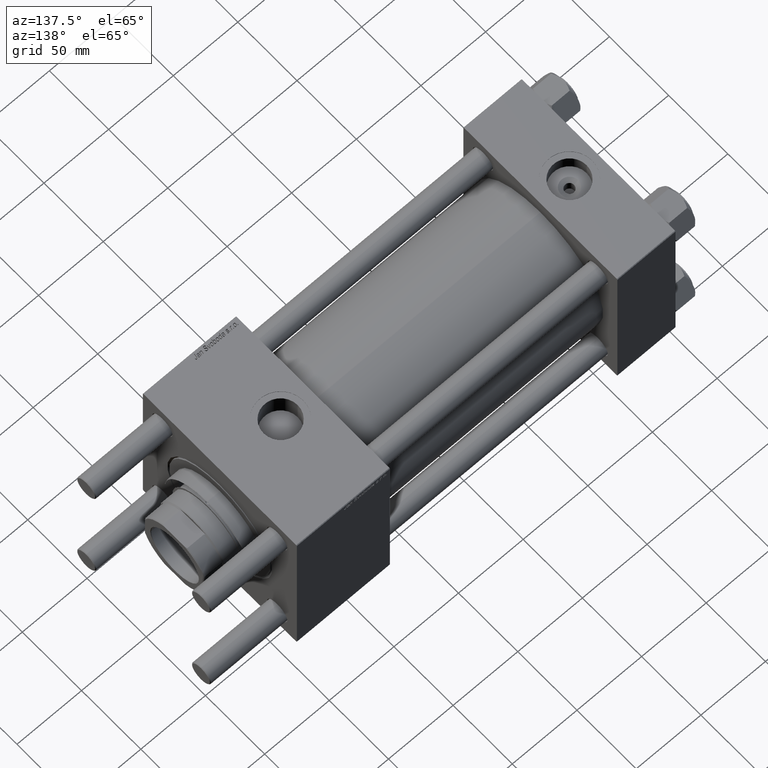
[diagram: clean part render]
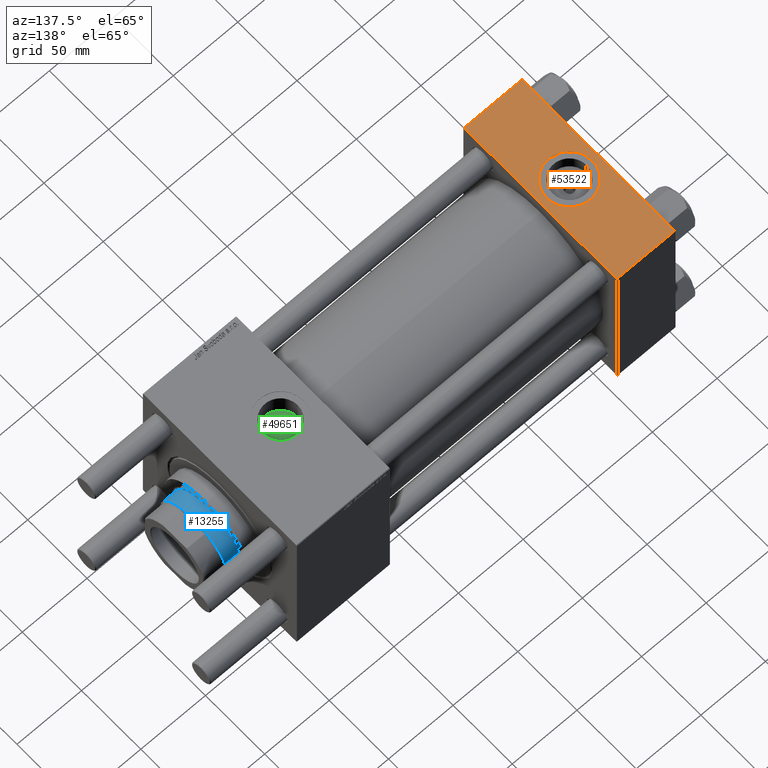
[diagram: same view with three faces highlighted in distinct colors, each labeled with its STEP entity id]
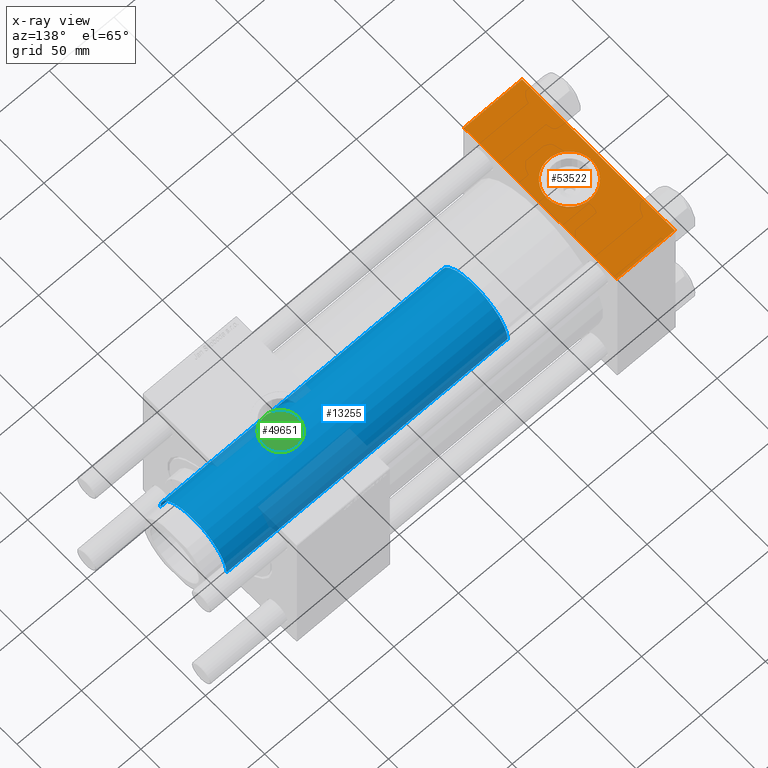
[diagram: x-ray of the same camera — body ghosted, the three highlighted faces saturated]
A machine part, auxiliary view with three faces highlighted in distinct colors.
The next image is the same camera in x-ray (body ghosted, the three faces saturated) — at least one of them is partly hidden behind the body in this view.
Their STEP definitions:

[orange] entity #53522 — the highlighted planar face has unit normal (0, 0, -1).
#555 = LINE ( 'NONE', #58596, #15909 ) ;
#647 = AXIS2_PLACEMENT_3D ( 'NONE', #57037, #20501, #11249 ) ;
#1080 = VERTEX_POINT ( 'NONE', #30788 ) ;
#2530 = VERTEX_POINT ( 'NONE', #51110 ) ;
#3120 = CIRCLE ( 'NONE', #9821, 17.50000000000000000 ) ;
#4623 = LINE ( 'NONE', #10276, #33643 ) ;
#5213 = CARTESIAN_POINT ( 'NONE',  ( 0.000000000000000000, -64.49999999999997158, 65.00000000000000000 ) ) ;
#5769 = DIRECTION ( 'NONE',  ( 0.000000000000000000, -1.000000000000000000, -1.067522139062650425E-16 ) ) ;
#7066 = FACE_BOUND ( 'NONE', #41758, .T. ) ;
#7391 = VECTOR ( 'NONE', #5769, 1000.000000000000000 ) ;
#9681 = VERTEX_POINT ( 'NONE', #5213 ) ;
#9821 = AXIS2_PLACEMENT_3D ( 'NONE', #31433, #41022, #50882 ) ;
#9910 = EDGE_CURVE ( 'NONE', #51829, #1080, #3120, .T. ) ;
#10276 = CARTESIAN_POINT ( 'NONE',  ( 0.000000000000000000, 65.00000000000000000, 65.00000000000001421 ) ) ;
#10398 = EDGE_CURVE ( 'NONE', #12628, #9681, #4623, .T. ) ;
#11249 = DIRECTION ( 'NONE',  ( 0.000000000000000000, 1.000000000000000000, 1.067522139062650548E-16 ) ) ;
#11828 = CARTESIAN_POINT ( 'NONE',  ( 0.000000000000000000, 64.49999999999997158, 65.00000000000001421 ) ) ;
#12628 = VERTEX_POINT ( 'NONE', #11828 ) ;
#13258 = PLANE ( 'NONE',  #647 ) ;
#13848 = LINE ( 'NONE', #19211, #7391 ) ;
#14700 = DIRECTION ( 'NONE',  ( 1.000000000000000000, 0.000000000000000000, 0.000000000000000000 ) ) ;
#15909 = VECTOR ( 'NONE', #28030, 1000.000000000000000 ) ;
#16930 = ORIENTED_EDGE ( 'NONE', *, *, #54334, .T. ) ;
#18832 = VERTEX_POINT ( 'NONE', #54820 ) ;
#19211 = CARTESIAN_POINT ( 'NONE',  ( 45.00000000000000000, 65.00000000000000000, 65.00000000000001421 ) ) ;
#20501 = DIRECTION ( 'NONE',  ( 0.000000000000000000, 1.067522139062650548E-16, -1.000000000000000000 ) ) ;
#25062 = DIRECTION ( 'NONE',  ( 1.000000000000000000, 0.000000000000000000, 0.000000000000000000 ) ) ;
#25871 = ORIENTED_EDGE ( 'NONE', *, *, #37177, .F. ) ;
#25963 = ORIENTED_EDGE ( 'NONE', *, *, #10398, .T. ) ;
#26389 = FACE_OUTER_BOUND ( 'NONE', #47111, .T. ) ;
#27917 = CARTESIAN_POINT ( 'NONE',  ( 40.00000000000000000, -8.673617379884035472E-15, 65.00000000000000000 ) ) ;
#28030 = DIRECTION ( 'NONE',  ( -1.000000000000000000, 0.000000000000000000, 0.000000000000000000 ) ) ;
#30788 = CARTESIAN_POINT ( 'NONE',  ( 4.999999999999997335, -6.530485481376167224E-15, 65.00000000000000000 ) ) ;
#31026 = CARTESIAN_POINT ( 'NONE',  ( 45.00000000000000000, -64.49999999999997158, 65.00000000000000000 ) ) ;
#31433 = CARTESIAN_POINT ( 'NONE',  ( 22.50000000000000000, -8.673617379884035472E-15, 65.00000000000000000 ) ) ;
#32636 = CARTESIAN_POINT ( 'NONE',  ( 22.50000000000000000, -8.673617379884035472E-15, 65.00000000000000000 ) ) ;
#33643 = VECTOR ( 'NONE', #55772, 1000.000000000000000 ) ;
#35398 = EDGE_CURVE ( 'NONE', #1080, #51829, #39833, .T. ) ;
#37177 = EDGE_CURVE ( 'NONE', #2530, #18832, #13848, .T. ) ;
#39833 = CIRCLE ( 'NONE', #47469, 17.50000000000000000 ) ;
#40222 = ORIENTED_EDGE ( 'NONE', *, *, #46746, .T. ) ;
#41022 = DIRECTION ( 'NONE',  ( 0.000000000000000000, 0.000000000000000000, 1.000000000000000000 ) ) ;
#41491 = ORIENTED_EDGE ( 'NONE', *, *, #35398, .F. ) ;
#41758 = EDGE_LOOP ( 'NONE', ( #58900, #41491 ) ) ;
#45814 = VECTOR ( 'NONE', #25062, 1000.000000000000000 ) ;
#46746 = EDGE_CURVE ( 'NONE', #9681, #18832, #58286, .T. ) ;
#47111 = EDGE_LOOP ( 'NONE', ( #25963, #40222, #25871, #16930 ) ) ;
#47469 = AXIS2_PLACEMENT_3D ( 'NONE', #32636, #55704, #14700 ) ;
#50882 = DIRECTION ( 'NONE',  ( 1.000000000000000000, 0.000000000000000000, 0.000000000000000000 ) ) ;
#51110 = CARTESIAN_POINT ( 'NONE',  ( 45.00000000000000000, 64.49999999999997158, 65.00000000000001421 ) ) ;
#51829 = VERTEX_POINT ( 'NONE', #27917 ) ;
#53522 = ADVANCED_FACE ( 'NONE', ( #7066, #26389 ), #13258, .F. ) ;
#54334 = EDGE_CURVE ( 'NONE', #2530, #12628, #555, .T. ) ;
#54820 = CARTESIAN_POINT ( 'NONE',  ( 45.00000000000000000, -64.49999999999997158, 65.00000000000000000 ) ) ;
#55704 = DIRECTION ( 'NONE',  ( 0.000000000000000000, 0.000000000000000000, 1.000000000000000000 ) ) ;
#55772 = DIRECTION ( 'NONE',  ( 0.000000000000000000, -1.000000000000000000, -1.067522139062650425E-16 ) ) ;
#57037 = CARTESIAN_POINT ( 'NONE',  ( 45.00000000000000000, 65.00000000000000000, 65.00000000000001421 ) ) ;
#58286 = LINE ( 'NONE', #31026, #45814 ) ;
#58596 = CARTESIAN_POINT ( 'NONE',  ( 0.000000000000000000, 64.49999999999997158, 65.00000000000001421 ) ) ;
#58900 = ORIENTED_EDGE ( 'NONE', *, *, #9910, .F. ) ;

[blue] entity #13255 — the highlighted cylindrical surface (partial cylindrical patch) has radius 28 mm, axis along (-1, 0, 0).
#443 = AXIS2_PLACEMENT_3D ( 'NONE', #51363, #37310, #1130 ) ;
#1130 = DIRECTION ( 'NONE',  ( -1.000000000000000000, 0.000000000000000000, 0.000000000000000000 ) ) ;
#1417 = FACE_OUTER_BOUND ( 'NONE', #20282, .T. ) ;
#3581 = DIRECTION ( 'NONE',  ( 0.000000000000000000, 0.000000000000000000, -1.000000000000000000 ) ) ;
#5324 = CYLINDRICAL_SURFACE ( 'NONE', #443, 28.00000000000000000 ) ;
#13255 = ADVANCED_FACE ( 'NONE', ( #1417 ), #5324, .T. ) ;
#13432 = DIRECTION ( 'NONE',  ( 1.000000000000000000, 0.000000000000000000, 0.000000000000000000 ) ) ;
#14250 = VERTEX_POINT ( 'NONE', #58518 ) ;
#17197 = ORIENTED_EDGE ( 'NONE', *, *, #49393, .T. ) ;
#20207 = VERTEX_POINT ( 'NONE', #33010 ) ;
#20282 = EDGE_LOOP ( 'NONE', ( #55161, #25461, #34854, #17197 ) ) ;
#21440 = VECTOR ( 'NONE', #46104, 1000.000000000000000 ) ;
#21624 = DIRECTION ( 'NONE',  ( -0.000000000000000000, -0.000000000000000000, -1.000000000000000000 ) ) ;
#21712 = CIRCLE ( 'NONE', #50368, 28.00000000000000000 ) ;
#25461 = ORIENTED_EDGE ( 'NONE', *, *, #54659, .T. ) ;
#25923 = CARTESIAN_POINT ( 'NONE',  ( 28.00000000000000000, 3.429011037612589276E-15, 268.5000000000000000 ) ) ;
#27086 = DIRECTION ( 'NONE',  ( 0.000000000000000000, 0.000000000000000000, 1.000000000000000000 ) ) ;
#28891 = EDGE_CURVE ( 'NONE', #33504, #14250, #53057, .T. ) ;
#30813 = CARTESIAN_POINT ( 'NONE',  ( -28.00000000000000000, 0.000000000000000000, 268.5000000000000000 ) ) ;
#32951 = AXIS2_PLACEMENT_3D ( 'NONE', #54358, #27086, #53470 ) ;
#33010 = CARTESIAN_POINT ( 'NONE',  ( 28.00000000000000000, 3.429011037612589276E-15, 51.00000000000000000 ) ) ;
#33504 = VERTEX_POINT ( 'NONE', #30813 ) ;
#34854 = ORIENTED_EDGE ( 'NONE', *, *, #28891, .T. ) ;
#37310 = DIRECTION ( 'NONE',  ( -0.000000000000000000, -0.000000000000000000, -1.000000000000000000 ) ) ;
#38000 = CARTESIAN_POINT ( 'NONE',  ( 28.00000000000000000, 3.429011037612589276E-15, 269.0000000000000000 ) ) ;
#41623 = LINE ( 'NONE', #38000, #21440 ) ;
#44540 = CARTESIAN_POINT ( 'NONE',  ( 0.000000000000000000, 0.000000000000000000, 268.5000000000000000 ) ) ;
#46104 = DIRECTION ( 'NONE',  ( -0.000000000000000000, -0.000000000000000000, -1.000000000000000000 ) ) ;
#47256 = VECTOR ( 'NONE', #21624, 1000.000000000000000 ) ;
#48853 = CARTESIAN_POINT ( 'NONE',  ( -28.00000000000000000, 0.000000000000000000, 269.0000000000000000 ) ) ;
#48875 = EDGE_CURVE ( 'NONE', #50419, #20207, #41623, .T. ) ;
#49393 = EDGE_CURVE ( 'NONE', #14250, #20207, #58763, .T. ) ;
#50368 = AXIS2_PLACEMENT_3D ( 'NONE', #44540, #3581, #13432 ) ;
#50419 = VERTEX_POINT ( 'NONE', #25923 ) ;
#51363 = CARTESIAN_POINT ( 'NONE',  ( 0.000000000000000000, 0.000000000000000000, 269.0000000000000000 ) ) ;
#53057 = LINE ( 'NONE', #48853, #47256 ) ;
#53470 = DIRECTION ( 'NONE',  ( 1.000000000000000000, 0.000000000000000000, 0.000000000000000000 ) ) ;
#54358 = CARTESIAN_POINT ( 'NONE',  ( 0.000000000000000000, 0.000000000000000000, 51.00000000000000000 ) ) ;
#54659 = EDGE_CURVE ( 'NONE', #50419, #33504, #21712, .T. ) ;
#55161 = ORIENTED_EDGE ( 'NONE', *, *, #48875, .F. ) ;
#58518 = CARTESIAN_POINT ( 'NONE',  ( -28.00000000000000000, 0.000000000000000000, 51.00000000000000000 ) ) ;
#58763 = CIRCLE ( 'NONE', #32951, 28.00000000000000000 ) ;

[green] entity #49651 — the highlighted planar face has unit normal (0, 0, 1).
#1381 = CARTESIAN_POINT ( 'NONE',  ( 245.9999999999999432, -6.938893903907228378E-15, 48.59999999999998721 ) ) ;
#5597 = EDGE_LOOP ( 'NONE', ( #6034, #25382 ) ) ;
#6034 = ORIENTED_EDGE ( 'NONE', *, *, #36870, .T. ) ;
#7745 = CARTESIAN_POINT ( 'NONE',  ( 259.2199999999999704, -5.319910835434431959E-15, 48.59999999999998721 ) ) ;
#9320 = AXIS2_PLACEMENT_3D ( 'NONE', #58870, #37004, #55283 ) ;
#9776 = PLANE ( 'NONE',  #55016 ) ;
#11227 = DIRECTION ( 'NONE',  ( 1.000000000000000000, 0.000000000000000000, -0.000000000000000000 ) ) ;
#12656 = CARTESIAN_POINT ( 'NONE',  ( 232.7799999999999727, -6.938893903907228378E-15, 48.59999999999998721 ) ) ;
#15039 = VERTEX_POINT ( 'NONE', #12656 ) ;
#15122 = DIRECTION ( 'NONE',  ( 0.000000000000000000, 0.000000000000000000, 1.000000000000000000 ) ) ;
#19600 = DIRECTION ( 'NONE',  ( 1.000000000000000000, 0.000000000000000000, 0.000000000000000000 ) ) ;
#19952 = VERTEX_POINT ( 'NONE', #7745 ) ;
#23392 = EDGE_CURVE ( 'NONE', #19952, #15039, #44373, .T. ) ;
#23520 = FACE_OUTER_BOUND ( 'NONE', #5597, .T. ) ;
#25382 = ORIENTED_EDGE ( 'NONE', *, *, #23392, .T. ) ;
#29147 = DIRECTION ( 'NONE',  ( 0.000000000000000000, 0.000000000000000000, 1.000000000000000000 ) ) ;
#35092 = CIRCLE ( 'NONE', #9320, 13.22000000000000952 ) ;
#36870 = EDGE_CURVE ( 'NONE', #15039, #19952, #35092, .T. ) ;
#37004 = DIRECTION ( 'NONE',  ( 0.000000000000000000, 0.000000000000000000, 1.000000000000000000 ) ) ;
#41785 = CARTESIAN_POINT ( 'NONE',  ( 245.9999999999999432, -6.938893903907228378E-15, 48.59999999999998721 ) ) ;
#44373 = CIRCLE ( 'NONE', #52023, 13.22000000000000952 ) ;
#49651 = ADVANCED_FACE ( 'NONE', ( #23520 ), #9776, .T. ) ;
#52023 = AXIS2_PLACEMENT_3D ( 'NONE', #1381, #15122, #19600 ) ;
#55016 = AXIS2_PLACEMENT_3D ( 'NONE', #41785, #29147, #11227 ) ;
#55283 = DIRECTION ( 'NONE',  ( 1.000000000000000000, 0.000000000000000000, 0.000000000000000000 ) ) ;
#58870 = CARTESIAN_POINT ( 'NONE',  ( 245.9999999999999432, -6.938893903907228378E-15, 48.59999999999998721 ) ) ;